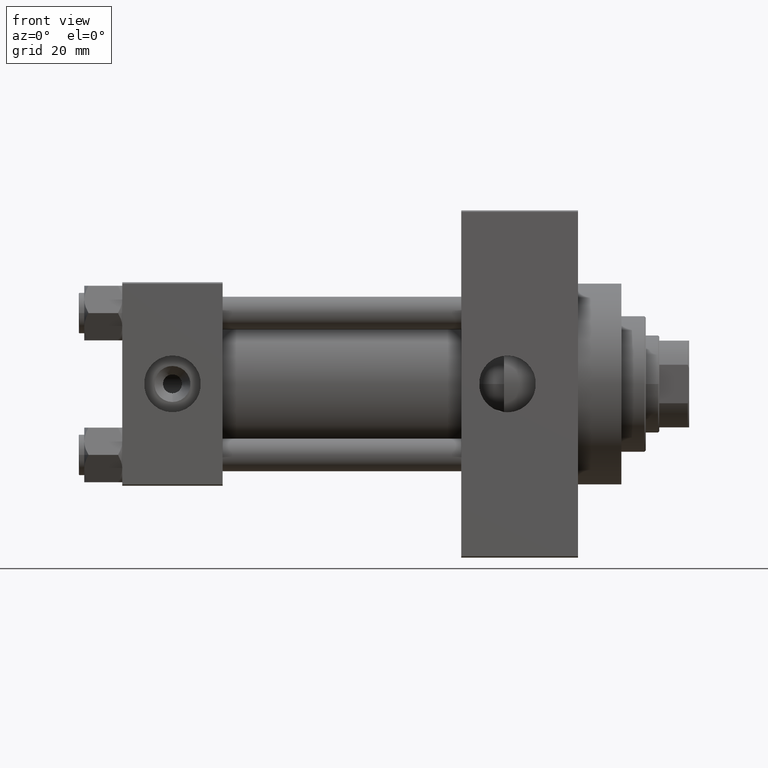
[diagram: clean part render]
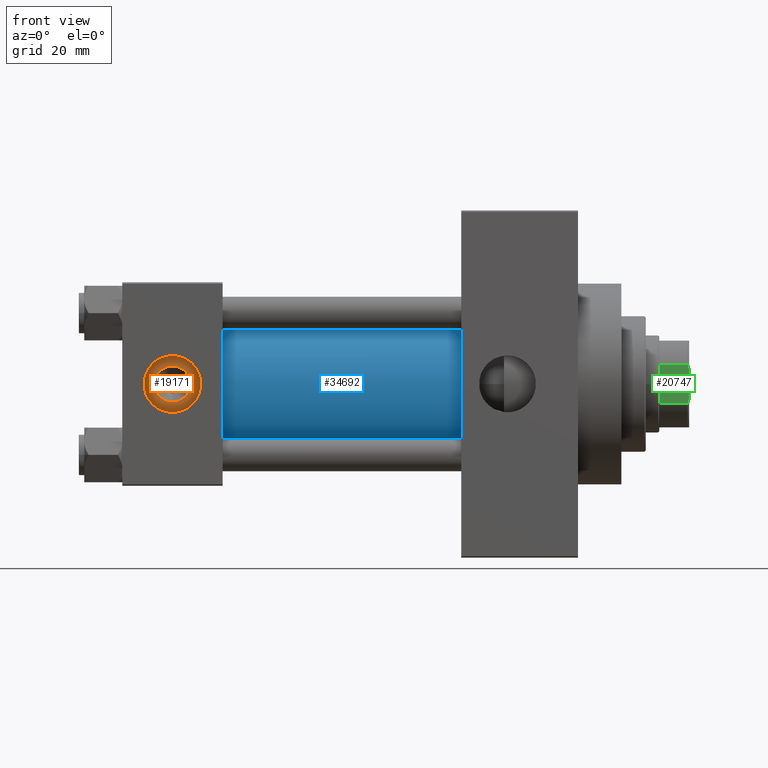
[diagram: same view with three faces highlighted in distinct colors, each labeled with its STEP entity id]
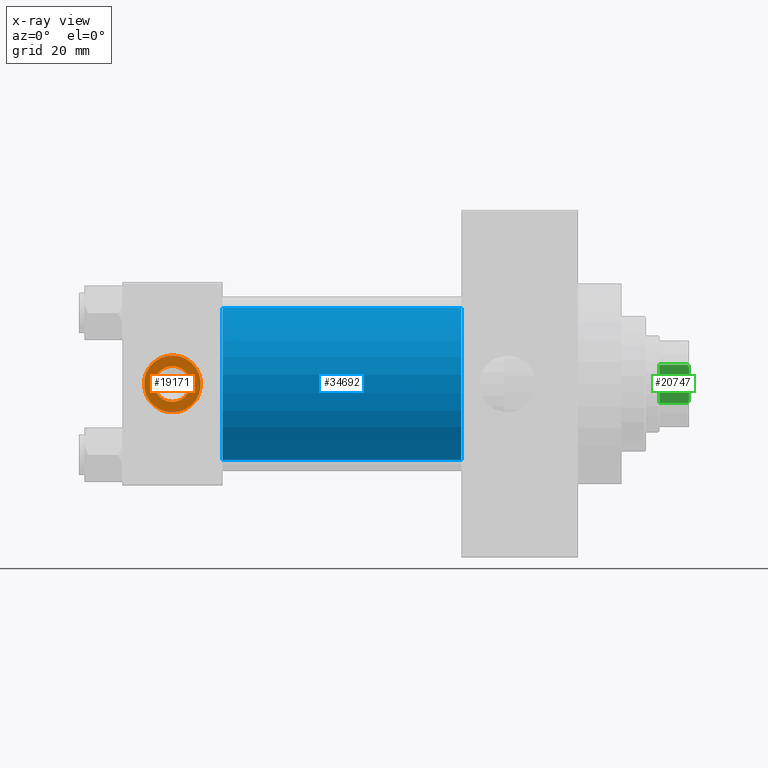
[diagram: x-ray of the same camera — body ghosted, the three highlighted faces saturated]
A machine part, front view with three faces highlighted in distinct colors.
The next image is the same camera in x-ray (body ghosted, the three faces saturated) — at least one of them is partly hidden behind the body in this view.
Their STEP definitions:

[orange] entity #19171 — the highlighted planar face has unit normal (0, -1, -0).
#962 = CIRCLE ( 'NONE', #26876, 10.48000000000000043 ) ;
#1076 = CARTESIAN_POINT ( 'NONE',  ( 18.50000000000000000, -26.60000000000000497, 6.640000000000061853 ) ) ;
#1381 = EDGE_CURVE ( 'NONE', #43625, #27879, #35928, .T. ) ;
#2072 = DIRECTION ( 'NONE',  ( 0.000000000000000000, -1.000000000000000000, -8.673617379884036705E-17 ) ) ;
#2544 = FACE_BOUND ( 'NONE', #30823, .T. ) ;
#3300 = CIRCLE ( 'NONE', #20835, 6.640000000000064517 ) ;
#3386 = VERTEX_POINT ( 'NONE', #25448 ) ;
#4955 = DIRECTION ( 'NONE',  ( 0.000000000000000000, 0.000000000000000000, -1.000000000000000000 ) ) ;
#5157 = EDGE_CURVE ( 'NONE', #27879, #43625, #962, .T. ) ;
#5222 = CARTESIAN_POINT ( 'NONE',  ( 18.50000000000000000, -26.60000000000000497, -2.524022657546253928E-15 ) ) ;
#5360 = DIRECTION ( 'NONE',  ( 0.000000000000000000, -1.000000000000000000, -8.673617379884036705E-17 ) ) ;
#5602 = CARTESIAN_POINT ( 'NONE',  ( 18.50000000000000000, -26.60000000000000497, -2.524022657546255111E-15 ) ) ;
#8260 = DIRECTION ( 'NONE',  ( 0.000000000000000000, 0.000000000000000000, -1.000000000000000000 ) ) ;
#9472 = DIRECTION ( 'NONE',  ( 0.000000000000000000, 8.673617379884036705E-17, -1.000000000000000000 ) ) ;
#9492 = CARTESIAN_POINT ( 'NONE',  ( 18.50000000000000000, -26.60000000000000497, -2.524022657546253928E-15 ) ) ;
#9741 = EDGE_CURVE ( 'NONE', #3386, #30167, #3300, .T. ) ;
#13146 = ORIENTED_EDGE ( 'NONE', *, *, #30881, .T. ) ;
#14548 = CARTESIAN_POINT ( 'NONE',  ( 18.50000000000000000, -26.60000000000000497, 10.47999999999999865 ) ) ;
#15199 = CARTESIAN_POINT ( 'NONE',  ( 18.50000000000000000, -26.60000000000000497, -2.524022657546255111E-15 ) ) ;
#16303 = CARTESIAN_POINT ( 'NONE',  ( 18.50000000000000000, -26.60000000000000497, -10.48000000000000220 ) ) ;
#19171 = ADVANCED_FACE ( 'NONE', ( #2544, #31438 ), #34775, .T. ) ;
#20140 = ORIENTED_EDGE ( 'NONE', *, *, #1381, .T. ) ;
#20197 = EDGE_LOOP ( 'NONE', ( #20140, #26927 ) ) ;
#20835 = AXIS2_PLACEMENT_3D ( 'NONE', #5222, #30772, #27441 ) ;
#22380 = DIRECTION ( 'NONE',  ( 0.000000000000000000, -1.000000000000000000, -8.673617379884036705E-17 ) ) ;
#25448 = CARTESIAN_POINT ( 'NONE',  ( 18.50000000000000000, -26.60000000000000497, -6.640000000000065405 ) ) ;
#26876 = AXIS2_PLACEMENT_3D ( 'NONE', #15199, #22380, #8260 ) ;
#26927 = ORIENTED_EDGE ( 'NONE', *, *, #5157, .T. ) ;
#27441 = DIRECTION ( 'NONE',  ( 0.000000000000000000, 0.000000000000000000, -1.000000000000000000 ) ) ;
#27879 = VERTEX_POINT ( 'NONE', #14548 ) ;
#28937 = CIRCLE ( 'NONE', #30457, 6.640000000000064517 ) ;
#29503 = AXIS2_PLACEMENT_3D ( 'NONE', #42185, #2072, #9472 ) ;
#30167 = VERTEX_POINT ( 'NONE', #1076 ) ;
#30457 = AXIS2_PLACEMENT_3D ( 'NONE', #9492, #33856, #4955 ) ;
#30772 = DIRECTION ( 'NONE',  ( -0.000000000000000000, 1.000000000000000000, 8.673617379884036705E-17 ) ) ;
#30823 = EDGE_LOOP ( 'NONE', ( #37266, #13146 ) ) ;
#30881 = EDGE_CURVE ( 'NONE', #30167, #3386, #28937, .T. ) ;
#31438 = FACE_OUTER_BOUND ( 'NONE', #20197, .T. ) ;
#32143 = AXIS2_PLACEMENT_3D ( 'NONE', #5602, #5360, #34494 ) ;
#33856 = DIRECTION ( 'NONE',  ( -0.000000000000000000, 1.000000000000000000, 8.673617379884036705E-17 ) ) ;
#34494 = DIRECTION ( 'NONE',  ( 0.000000000000000000, 0.000000000000000000, -1.000000000000000000 ) ) ;
#34775 = PLANE ( 'NONE',  #29503 ) ;
#35928 = CIRCLE ( 'NONE', #32143, 10.48000000000000043 ) ;
#37266 = ORIENTED_EDGE ( 'NONE', *, *, #9741, .T. ) ;
#42185 = CARTESIAN_POINT ( 'NONE',  ( 18.50000000000000000, -26.60000000000000497, -2.524022657546255111E-15 ) ) ;
#43625 = VERTEX_POINT ( 'NONE', #16303 ) ;

[blue] entity #34692 — the highlighted cylindrical surface (partial cylindrical patch) has radius 28 mm, axis along (-1, -0, -0).
#2838 = FACE_OUTER_BOUND ( 'NONE', #35478, .T. ) ;
#3451 = DIRECTION ( 'NONE',  ( 0.000000000000000000, 0.000000000000000000, -1.000000000000000000 ) ) ;
#3907 = CARTESIAN_POINT ( 'NONE',  ( 125.0000000000000000, -2.602085213965210642E-15, 0.000000000000000000 ) ) ;
#4676 = CIRCLE ( 'NONE', #19165, 28.00000000000000000 ) ;
#11050 = CARTESIAN_POINT ( 'NONE',  ( 37.00000000000000711, -2.602085213965210642E-15, 28.00000000000000000 ) ) ;
#11403 = AXIS2_PLACEMENT_3D ( 'NONE', #3907, #22534, #3451 ) ;
#12357 = VERTEX_POINT ( 'NONE', #17361 ) ;
#13735 = DIRECTION ( 'NONE',  ( 0.000000000000000000, 0.000000000000000000, 1.000000000000000000 ) ) ;
#16993 = DIRECTION ( 'NONE',  ( -1.000000000000000000, -0.000000000000000000, -0.000000000000000000 ) ) ;
#17162 = LINE ( 'NONE', #31722, #36742 ) ;
#17361 = CARTESIAN_POINT ( 'NONE',  ( 37.00000000000000711, 8.269258236473784371E-16, -28.00000000000000000 ) ) ;
#17623 = AXIS2_PLACEMENT_3D ( 'NONE', #47001, #17639, #32447 ) ;
#17639 = DIRECTION ( 'NONE',  ( -1.000000000000000000, -0.000000000000000000, -0.000000000000000000 ) ) ;
#19165 = AXIS2_PLACEMENT_3D ( 'NONE', #24960, #21851, #13735 ) ;
#21737 = VERTEX_POINT ( 'NONE', #25609 ) ;
#21851 = DIRECTION ( 'NONE',  ( 1.000000000000000000, -0.000000000000000000, 0.000000000000000000 ) ) ;
#22534 = DIRECTION ( 'NONE',  ( 1.000000000000000000, 0.000000000000000000, 0.000000000000000000 ) ) ;
#24960 = CARTESIAN_POINT ( 'NONE',  ( 37.00000000000000711, -2.602085213965210642E-15, 0.000000000000000000 ) ) ;
#25609 = CARTESIAN_POINT ( 'NONE',  ( 125.0000000000000000, 8.269258236473784371E-16, -28.00000000000000000 ) ) ;
#27240 = ORIENTED_EDGE ( 'NONE', *, *, #31460, .F. ) ;
#27497 = LINE ( 'NONE', #42059, #32386 ) ;
#30785 = VERTEX_POINT ( 'NONE', #34082 ) ;
#31460 = EDGE_CURVE ( 'NONE', #30785, #21737, #32008, .T. ) ;
#31722 = CARTESIAN_POINT ( 'NONE',  ( 125.0000000000000000, 8.269258236473784371E-16, -28.00000000000000000 ) ) ;
#32008 = CIRCLE ( 'NONE', #11403, 28.00000000000000000 ) ;
#32231 = ORIENTED_EDGE ( 'NONE', *, *, #39439, .T. ) ;
#32386 = VECTOR ( 'NONE', #16993, 1000.000000000000000 ) ;
#32447 = DIRECTION ( 'NONE',  ( 0.000000000000000000, 0.000000000000000000, 1.000000000000000000 ) ) ;
#34082 = CARTESIAN_POINT ( 'NONE',  ( 125.0000000000000000, -2.602085213965210642E-15, 28.00000000000000000 ) ) ;
#34144 = ORIENTED_EDGE ( 'NONE', *, *, #46124, .T. ) ;
#34692 = ADVANCED_FACE ( 'NONE', ( #2838 ), #46525, .T. ) ;
#35478 = EDGE_LOOP ( 'NONE', ( #40095, #27240, #34144, #32231 ) ) ;
#36108 = EDGE_CURVE ( 'NONE', #21737, #12357, #17162, .T. ) ;
#36742 = VECTOR ( 'NONE', #46281, 1000.000000000000000 ) ;
#39439 = EDGE_CURVE ( 'NONE', #45025, #12357, #4676, .T. ) ;
#40095 = ORIENTED_EDGE ( 'NONE', *, *, #36108, .F. ) ;
#42059 = CARTESIAN_POINT ( 'NONE',  ( 125.0000000000000000, -2.602085213965210642E-15, 28.00000000000000000 ) ) ;
#45025 = VERTEX_POINT ( 'NONE', #11050 ) ;
#46124 = EDGE_CURVE ( 'NONE', #30785, #45025, #27497, .T. ) ;
#46281 = DIRECTION ( 'NONE',  ( -1.000000000000000000, -0.000000000000000000, -0.000000000000000000 ) ) ;
#46525 = CYLINDRICAL_SURFACE ( 'NONE', #17623, 28.00000000000000000 ) ;
#47001 = CARTESIAN_POINT ( 'NONE',  ( 125.0000000000000000, -2.602085213965210642E-15, 0.000000000000000000 ) ) ;

[green] entity #20747 — the highlighted planar face has unit normal (0, 1, 0).
#2371 = DIRECTION ( 'NONE',  ( -1.084202172485504434E-16, 1.000000000000000000, -0.000000000000000000 ) ) ;
#4823 = EDGE_CURVE ( 'NONE', #46631, #9035, #26752, .T. ) ;
#7836 = EDGE_LOOP ( 'NONE', ( #21624, #42794, #41144, #19824, #36884, #29254 ) ) ;
#9035 = VERTEX_POINT ( 'NONE', #19442 ) ;
#9153 = CARTESIAN_POINT ( 'NONE',  ( 15.99999999999999645, 7.088723439378923352, 160.9999999999999716 ) ) ;
#9773 = CARTESIAN_POINT ( 'NONE',  ( 15.99999999999999645, 16.00000000000000000, 161.0000000000000000 ) ) ;
#9783 = FACE_OUTER_BOUND ( 'NONE', #7836, .T. ) ;
#9950 = CARTESIAN_POINT ( 'NONE',  ( 15.99999999999999645, -7.088723439378925129, 171.5000000000000000 ) ) ;
#10460 = EDGE_CURVE ( 'NONE', #33391, #46631, #11231, .T. ) ;
#10711 = CARTESIAN_POINT ( 'NONE',  ( 15.99999999999999645, 6.645462757301143775, 171.6795515649600077 ) ) ;
#11231 = LINE ( 'NONE', #15274, #19304 ) ;
#15274 = CARTESIAN_POINT ( 'NONE',  ( 15.99999999999999645, 7.088723439378923352, -0.001000000000001000089 ) ) ;
#15345 = VECTOR ( 'NONE', #17804, 1000.000000000000000 ) ;
#17567 = CARTESIAN_POINT ( 'NONE',  ( 16.00000000000000000, -5.744562646538085460, 172.0000000000000000 ) ) ;
#17674 = VERTEX_POINT ( 'NONE', #20120 ) ;
#17804 = DIRECTION ( 'NONE',  ( -1.084202172485504434E-16, 1.000000000000000000, -0.000000000000000000 ) ) ;
#19304 = VECTOR ( 'NONE', #29849, 1000.000000000000000 ) ;
#19442 = CARTESIAN_POINT ( 'NONE',  ( 16.00000000000000000, 5.744562646538086348, 172.0000000000000000 ) ) ;
#19824 = ORIENTED_EDGE ( 'NONE', *, *, #29614, .T. ) ;
#19957 = VERTEX_POINT ( 'NONE', #9950 ) ;
#20051 = PLANE ( 'NONE',  #37879 ) ;
#20120 = CARTESIAN_POINT ( 'NONE',  ( 16.00000000000000000, -5.744562646538085460, 172.0000000000000000 ) ) ;
#20747 = ADVANCED_FACE ( 'NONE', ( #9783 ), #20051, .F. ) ;
#21617 = LINE ( 'NONE', #32600, #15345 ) ;
#21624 = ORIENTED_EDGE ( 'NONE', *, *, #10460, .T. ) ;
#25218 = CARTESIAN_POINT ( 'NONE',  ( 15.99999999999999645, 7.088723439378923352, 171.5000000000000000 ) ) ;
#26752 = B_SPLINE_CURVE_WITH_KNOTS ( 'NONE', 3,
 ( #36270, #10711, #33554, #36034 ),
 .UNSPECIFIED., .F., .F.,
 ( 4, 4 ),
 ( 0.000000000000000000, 0.001434143729551021077 ),
 .UNSPECIFIED. ) ;
#27700 = CARTESIAN_POINT ( 'NONE',  ( 15.99999999999999645, 16.00000000000000000, 172.0000000000000000 ) ) ;
#27805 = VECTOR ( 'NONE', #2371, 1000.000000000000000 ) ;
#28551 = CARTESIAN_POINT ( 'NONE',  ( 16.00000000000000000, -6.197659614356097357, 171.8468915343184165 ) ) ;
#29254 = ORIENTED_EDGE ( 'NONE', *, *, #47097, .T. ) ;
#29614 = EDGE_CURVE ( 'NONE', #17674, #19957, #44036, .T. ) ;
#29849 = DIRECTION ( 'NONE',  ( -0.000000000000000000, -0.000000000000000000, 1.000000000000000000 ) ) ;
#31508 = LINE ( 'NONE', #9773, #27805 ) ;
#32129 = CARTESIAN_POINT ( 'NONE',  ( 15.99999999999999645, -7.088723439378925129, 171.5000000000000000 ) ) ;
#32600 = CARTESIAN_POINT ( 'NONE',  ( 15.99999999999999645, 16.00000000000000000, 172.0000000000000000 ) ) ;
#33391 = VERTEX_POINT ( 'NONE', #9153 ) ;
#33554 = CARTESIAN_POINT ( 'NONE',  ( 15.99999999999999645, 6.197659614356095581, 171.8468915343184165 ) ) ;
#33937 = CARTESIAN_POINT ( 'NONE',  ( 15.99999999999999645, -7.088723439378925129, 160.9999999999999716 ) ) ;
#34609 = DIRECTION ( 'NONE',  ( 1.084202172485504557E-16, -1.000000000000000000, 0.000000000000000000 ) ) ;
#36034 = CARTESIAN_POINT ( 'NONE',  ( 16.00000000000000000, 5.744562646538086348, 172.0000000000000000 ) ) ;
#36270 = CARTESIAN_POINT ( 'NONE',  ( 15.99999999999999645, 7.088723439378923352, 171.5000000000000000 ) ) ;
#36633 = VERTEX_POINT ( 'NONE', #33937 ) ;
#36884 = ORIENTED_EDGE ( 'NONE', *, *, #43703, .F. ) ;
#37879 = AXIS2_PLACEMENT_3D ( 'NONE', #27700, #38679, #34609 ) ;
#38679 = DIRECTION ( 'NONE',  ( -1.000000000000000000, -1.084202172485504557E-16, 0.000000000000000000 ) ) ;
#39346 = EDGE_CURVE ( 'NONE', #17674, #9035, #21617, .T. ) ;
#39684 = CARTESIAN_POINT ( 'NONE',  ( 15.99999999999999645, -7.088723439378925129, -0.001000000000001000089 ) ) ;
#41144 = ORIENTED_EDGE ( 'NONE', *, *, #39346, .F. ) ;
#42792 = DIRECTION ( 'NONE',  ( -0.000000000000000000, -0.000000000000000000, 1.000000000000000000 ) ) ;
#42794 = ORIENTED_EDGE ( 'NONE', *, *, #4823, .T. ) ;
#43344 = CARTESIAN_POINT ( 'NONE',  ( 16.00000000000000000, -6.645462757301157986, 171.6795515649600361 ) ) ;
#43703 = EDGE_CURVE ( 'NONE', #36633, #19957, #45903, .T. ) ;
#44036 = B_SPLINE_CURVE_WITH_KNOTS ( 'NONE', 3,
 ( #17567, #28551, #43344, #32129 ),
 .UNSPECIFIED., .F., .F.,
 ( 4, 4 ),
 ( 8.673617379884034509E-19, 0.001434143729551023679 ),
 .UNSPECIFIED. ) ;
#45246 = VECTOR ( 'NONE', #42792, 1000.000000000000000 ) ;
#45903 = LINE ( 'NONE', #39684, #45246 ) ;
#46631 = VERTEX_POINT ( 'NONE', #25218 ) ;
#47097 = EDGE_CURVE ( 'NONE', #36633, #33391, #31508, .T. ) ;